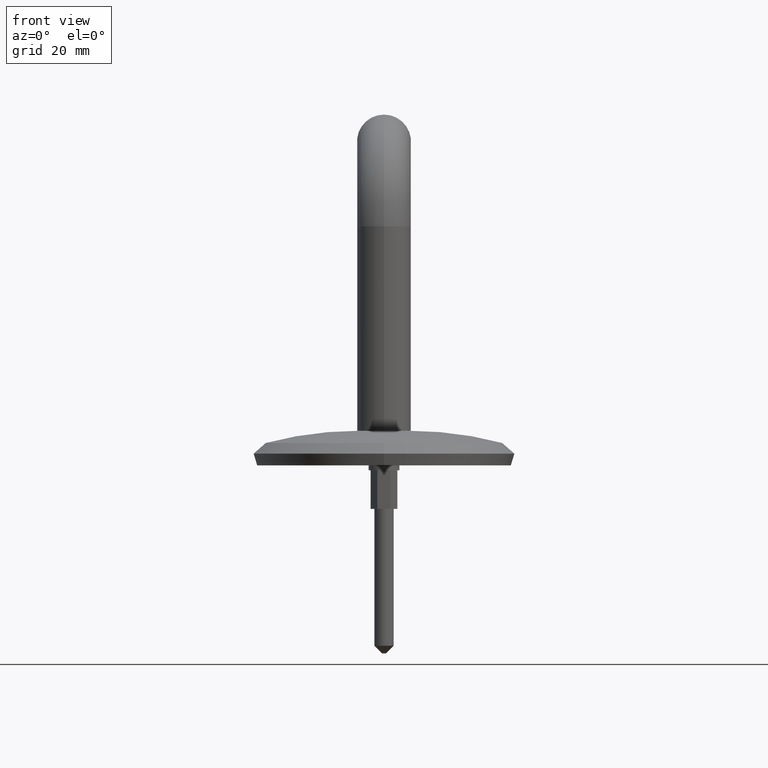
[diagram: clean part render]
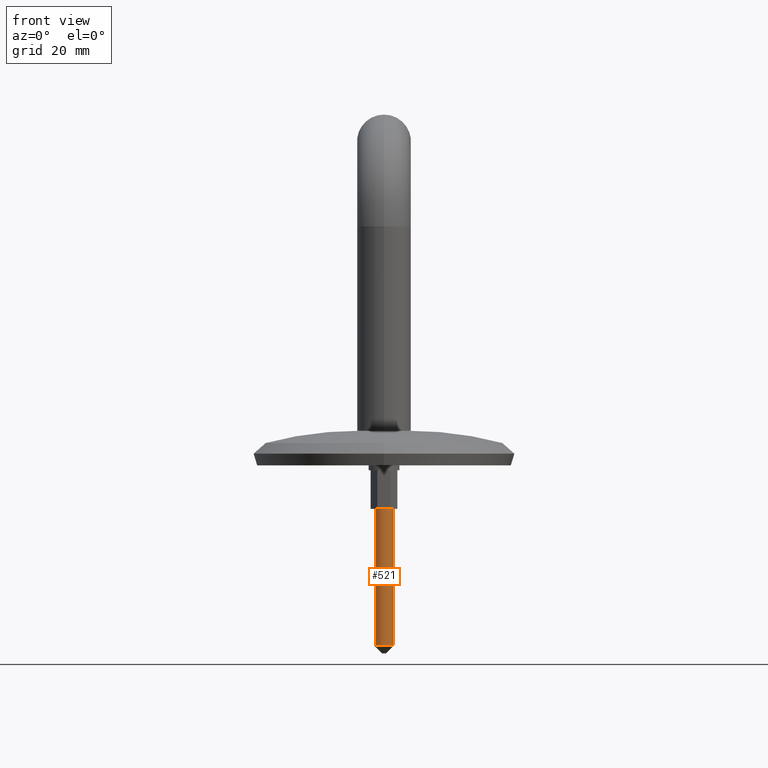
[diagram: same view with one face highlighted and labeled with its STEP entity id]
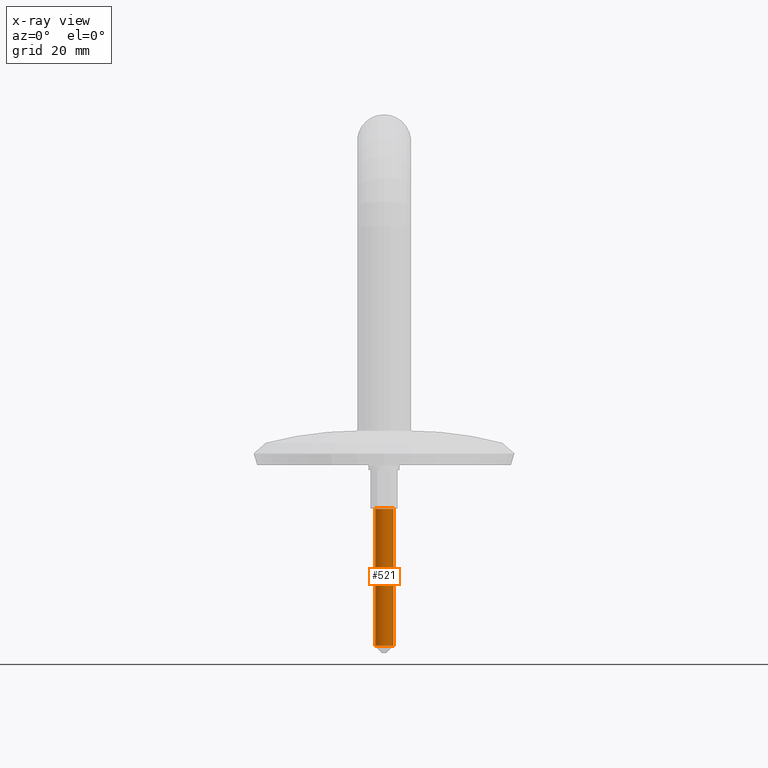
[diagram: x-ray of the same camera — body ghosted, the highlighted face saturated]
A machine part, front view. The second image highlights one B-rep face of the part: STEP entity #521.
The next image is the same camera in x-ray: the body ghosted, the highlighted face saturated — about 0% of this face is hidden behind the body in this view.
In plain terms, the highlighted cylindrical surface (edge-blend (fillet) strip) has radius 2.5 mm, axis along (0, 0, -1).
Its self-contained STEP definition (entity closure, byte-faithful):
#521 = ADVANCED_FACE ( 'NONE', ( #4311 ), #12577, .T. ) ;
#719 = AXIS2_PLACEMENT_3D ( 'NONE', #4664, #4612, #7931 ) ;
#1557 = VERTEX_POINT ( 'NONE', #10210 ) ;
#1861 = DIRECTION ( 'NONE',  ( 0.000000000000000000, 0.000000000000000000, 1.000000000000000000 ) ) ;
#2407 = EDGE_CURVE ( 'NONE', #13730, #9747, #6891, .T. ) ;
#3728 = EDGE_CURVE ( 'NONE', #5647, #9747, #10346, .T. ) ;
#4079 = ORIENTED_EDGE ( 'NONE', *, *, #7536, .T. ) ;
#4311 = FACE_OUTER_BOUND ( 'NONE', #6549, .T. ) ;
#4612 = DIRECTION ( 'NONE',  ( 0.000000000000000000, 0.000000000000000000, 1.000000000000000000 ) ) ;
#4664 = CARTESIAN_POINT ( 'NONE',  ( 0.000000000000000000, 0.000000000000000000, -37.50000000000000000 ) ) ;
#5052 = CARTESIAN_POINT ( 'NONE',  ( 2.500000000000000000, 0.000000000000000000, -37.50000000000000000 ) ) ;
#5647 = VERTEX_POINT ( 'NONE', #5881 ) ;
#5881 = CARTESIAN_POINT ( 'NONE',  ( 2.500000000000000000, 0.000000000000000000, -2.000000000000015543 ) ) ;
#6262 = ORIENTED_EDGE ( 'NONE', *, *, #3728, .T. ) ;
#6527 = VECTOR ( 'NONE', #1861, 1000.000000000000000 ) ;
#6549 = EDGE_LOOP ( 'NONE', ( #7202, #8114, #4079, #6262 ) ) ;
#6891 = LINE ( 'NONE', #11135, #6527 ) ;
#7029 = AXIS2_PLACEMENT_3D ( 'NONE', #8747, #8845, #12990 ) ;
#7144 = EDGE_CURVE ( 'NONE', #13730, #1557, #12476, .T. ) ;
#7202 = ORIENTED_EDGE ( 'NONE', *, *, #2407, .F. ) ;
#7387 = DIRECTION ( 'NONE',  ( 0.000000000000000000, 0.000000000000000000, -1.000000000000000000 ) ) ;
#7536 = EDGE_CURVE ( 'NONE', #1557, #5647, #8656, .T. ) ;
#7931 = DIRECTION ( 'NONE',  ( 1.000000000000000000, 0.000000000000000000, 0.000000000000000000 ) ) ;
#8114 = ORIENTED_EDGE ( 'NONE', *, *, #7144, .T. ) ;
#8355 = DIRECTION ( 'NONE',  ( 1.000000000000000000, 0.000000000000000000, 0.000000000000000000 ) ) ;
#8497 = AXIS2_PLACEMENT_3D ( 'NONE', #13621, #7387, #8355 ) ;
#8656 = LINE ( 'NONE', #5052, #12944 ) ;
#8747 = CARTESIAN_POINT ( 'NONE',  ( 0.000000000000000000, 0.000000000000000000, -37.50000000000000000 ) ) ;
#8845 = DIRECTION ( 'NONE',  ( 0.000000000000000000, -0.000000000000000000, 1.000000000000000000 ) ) ;
#9007 = CARTESIAN_POINT ( 'NONE',  ( -2.500000000000000000, 3.061616997868383141E-16, -37.50000000000000000 ) ) ;
#9747 = VERTEX_POINT ( 'NONE', #11591 ) ;
#10210 = CARTESIAN_POINT ( 'NONE',  ( 2.500000000000000000, 0.000000000000000000, -37.50000000000000000 ) ) ;
#10338 = DIRECTION ( 'NONE',  ( 0.000000000000000000, 0.000000000000000000, 1.000000000000000000 ) ) ;
#10346 = CIRCLE ( 'NONE', #8497, 2.500000000000000000 ) ;
#11135 = CARTESIAN_POINT ( 'NONE',  ( -2.500000000000000000, 3.061616997868383141E-16, -37.50000000000000000 ) ) ;
#11591 = CARTESIAN_POINT ( 'NONE',  ( -2.500000000000000000, 3.061616997868383141E-16, -2.000000000000015543 ) ) ;
#12476 = CIRCLE ( 'NONE', #7029, 2.500000000000000000 ) ;
#12577 = CYLINDRICAL_SURFACE ( 'NONE', #719, 2.500000000000000000 ) ;
#12944 = VECTOR ( 'NONE', #10338, 1000.000000000000000 ) ;
#12990 = DIRECTION ( 'NONE',  ( -1.000000000000000000, 0.000000000000000000, 0.000000000000000000 ) ) ;
#13621 = CARTESIAN_POINT ( 'NONE',  ( 0.000000000000000000, 0.000000000000000000, -2.000000000000015543 ) ) ;
#13730 = VERTEX_POINT ( 'NONE', #9007 ) ;